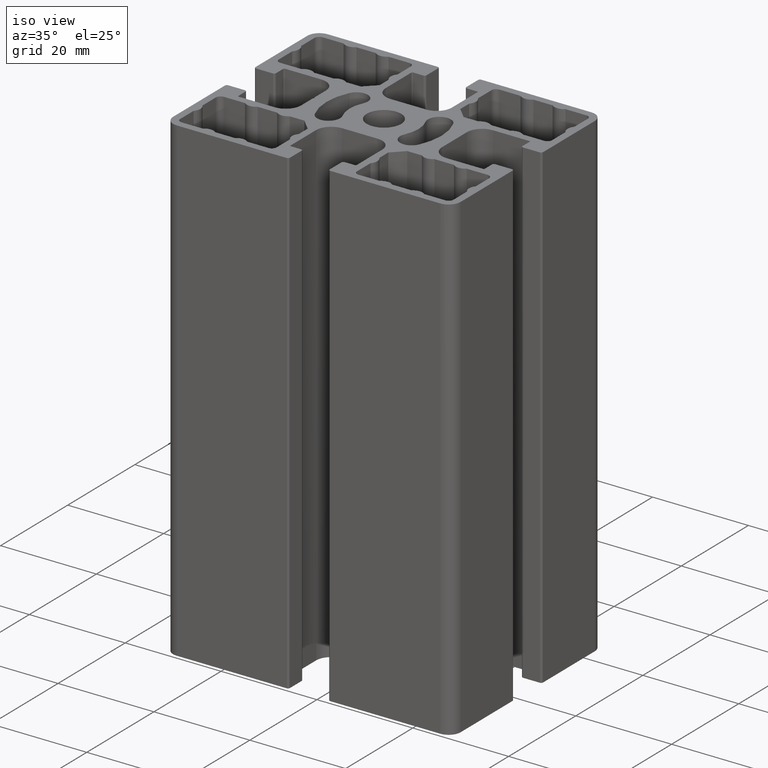
[diagram: clean part render]
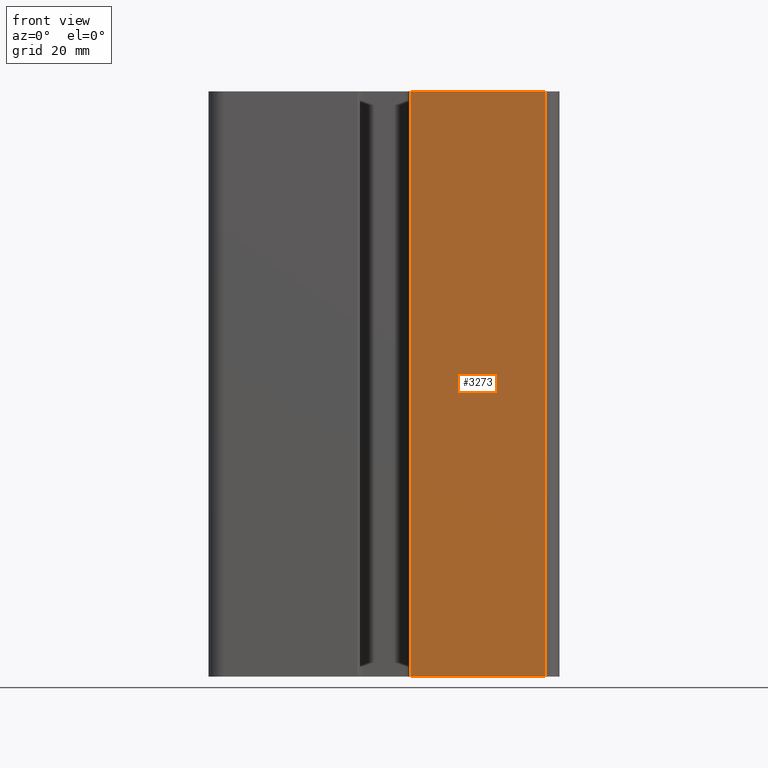
[diagram: tour spotlight — one face highlighted and labeled with its STEP entity id]
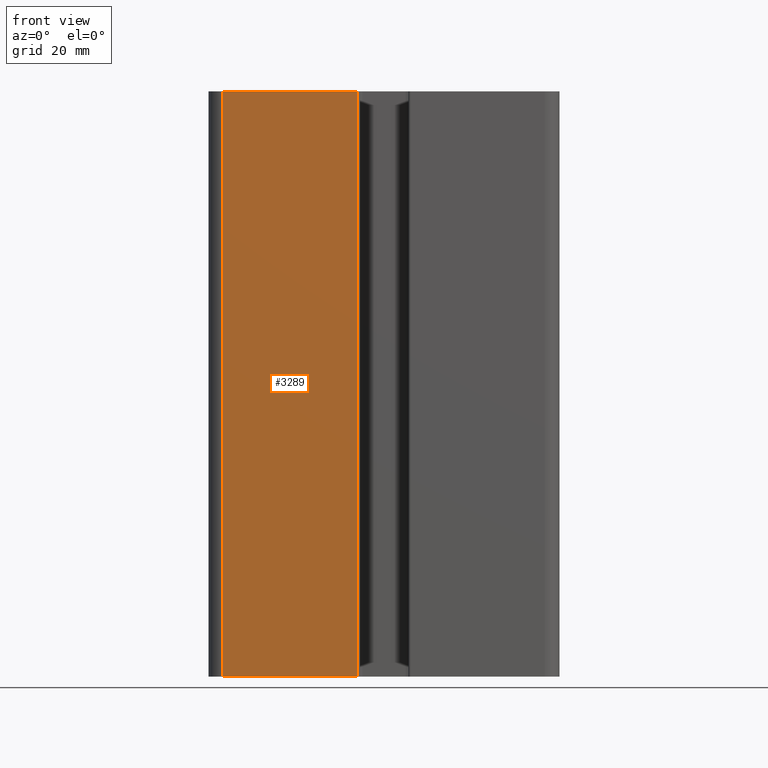
[diagram: tour spotlight — one face highlighted and labeled with its STEP entity id]
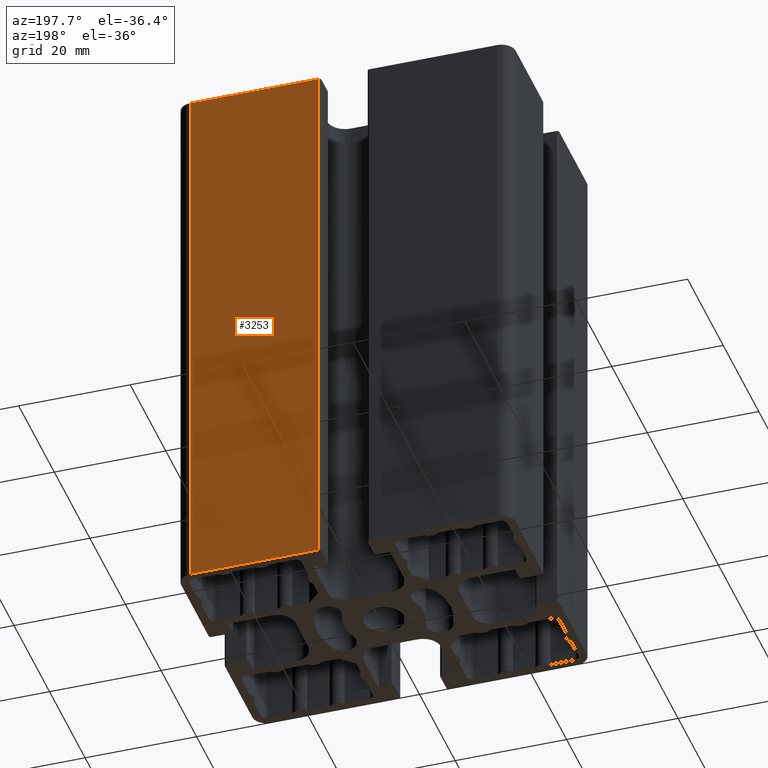
[diagram: tour spotlight — one face highlighted and labeled with its STEP entity id]
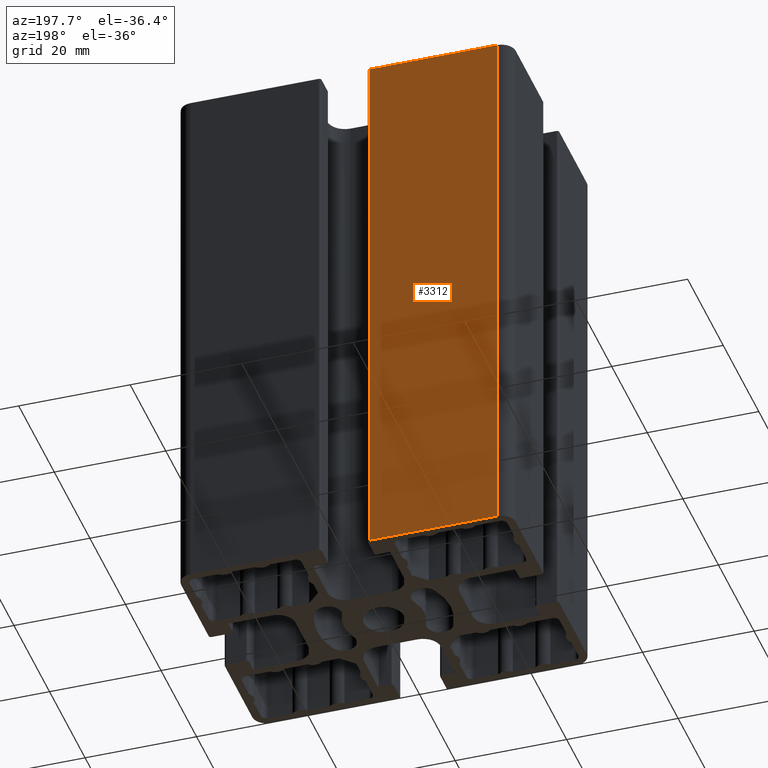
[diagram: tour spotlight — one face highlighted and labeled with its STEP entity id]
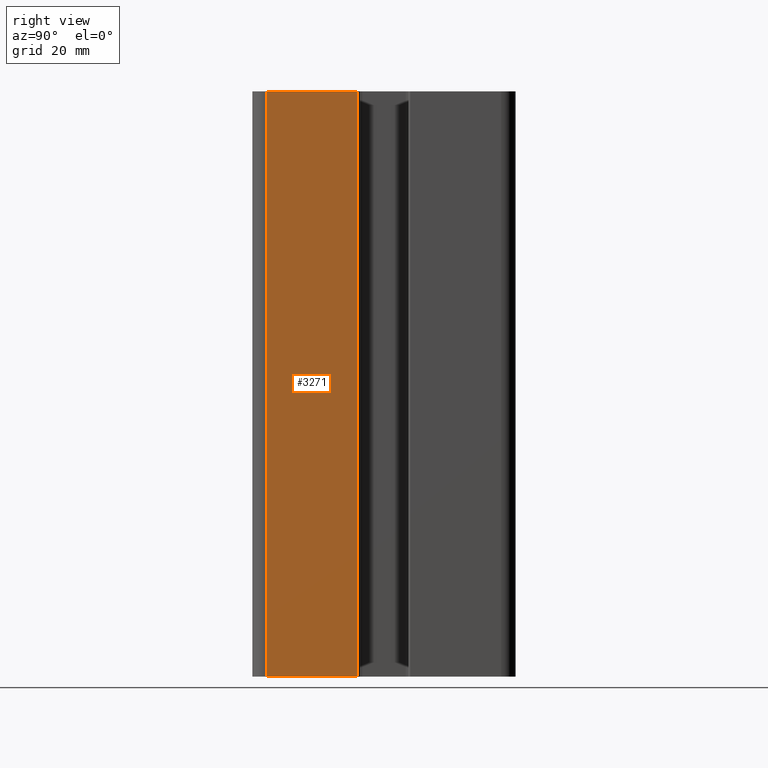
[diagram: tour spotlight — one face highlighted and labeled with its STEP entity id]
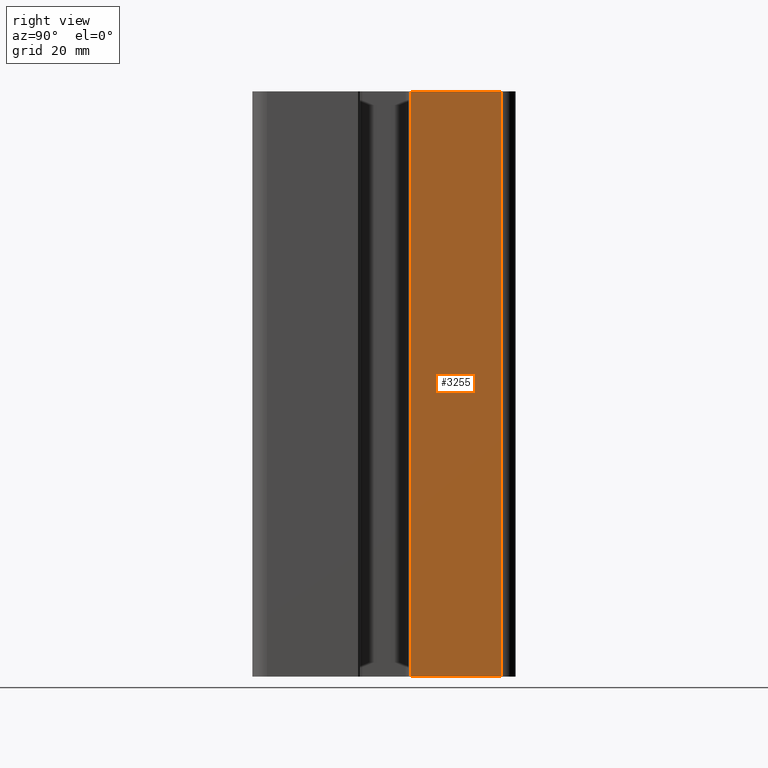
[diagram: tour spotlight — one face highlighted and labeled with its STEP entity id]
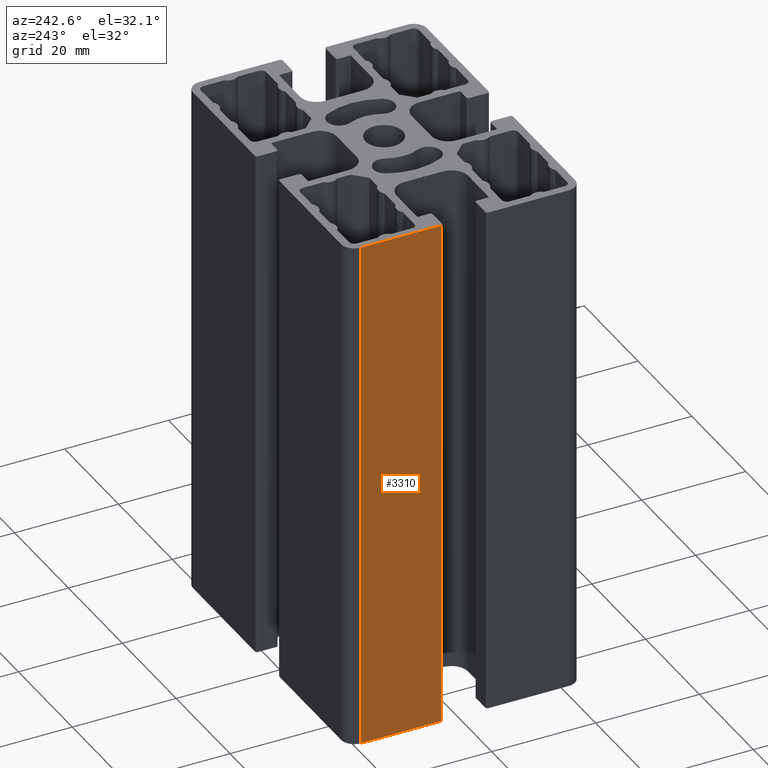
[diagram: tour spotlight — one face highlighted and labeled with its STEP entity id]
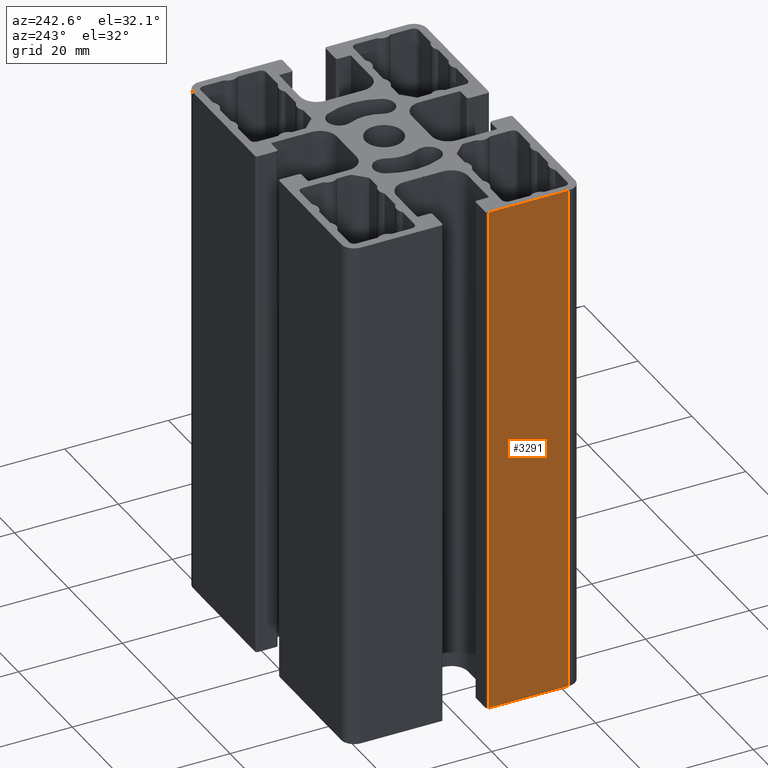
[diagram: tour spotlight — one face highlighted and labeled with its STEP entity id]
A machine part: a face-by-face anatomy tour. The part has 166 B-rep faces; the first image is the clean iso view, then the 8 largest visible faces are spotlighted one at a time (largest first), each with its STEP entity span.

Face 1 — front view, entity #3273. In plain terms, the highlighted planar face has unit normal (0, -1, 0).
Definition (entity closure, byte-faithful):
#84=PLANE('',#3551);
#224=FACE_OUTER_BOUND('',#391,.T.);
#391=EDGE_LOOP('',(#2535,#2536,#2537,#2538));
#678=LINE('',#5303,#1007);
#679=LINE('',#5306,#1008);
#680=LINE('',#5308,#1009);
#681=LINE('',#5309,#1010);
#1007=VECTOR('',#4316,100.);
#1008=VECTOR('',#4319,22.9499999765909);
#1009=VECTOR('',#4320,22.9499999765909);
#1010=VECTOR('',#4321,100.);
#1500=VERTEX_POINT('',#5299);
#1501=VERTEX_POINT('',#5301);
#1502=VERTEX_POINT('',#5305);
#1503=VERTEX_POINT('',#5307);
#1936=EDGE_CURVE('',#1500,#1501,#678,.T.);
#1937=EDGE_CURVE('',#1502,#1500,#679,.T.);
#1938=EDGE_CURVE('',#1503,#1501,#680,.T.);
#1939=EDGE_CURVE('',#1502,#1503,#681,.T.);
#2535=ORIENTED_EDGE('',*,*,#1937,.T.);
#2536=ORIENTED_EDGE('',*,*,#1936,.T.);
#2537=ORIENTED_EDGE('',*,*,#1938,.F.);
#2538=ORIENTED_EDGE('',*,*,#1939,.F.);
#3273=ADVANCED_FACE('',(#224),#84,.T.);
#3551=AXIS2_PLACEMENT_3D('',#5304,#4317,#4318);
#4316=DIRECTION('',(0.,0.,1.));
#4317=DIRECTION('center_axis',(0.,-1.,0.));
#4318=DIRECTION('ref_axis',(1.,0.,0.));
#4319=DIRECTION('',(1.,0.,0.));
#4320=DIRECTION('',(1.,0.,0.));
#4321=DIRECTION('',(0.,0.,1.));
#5299=CARTESIAN_POINT('',(27.49999997195,-22.49999997705,0.));
#5301=CARTESIAN_POINT('',(27.49999997195,-22.49999997705,100.));
#5303=CARTESIAN_POINT('',(27.49999997195,-22.49999997705,0.));
#5304=CARTESIAN_POINT('Origin',(4.54999999535914,-22.49999997705,0.));
#5305=CARTESIAN_POINT('',(4.54999999535914,-22.49999997705,0.));
#5306=CARTESIAN_POINT('',(4.54999999535914,-22.49999997705,0.));
#5307=CARTESIAN_POINT('',(4.54999999535914,-22.49999997705,100.));
#5308=CARTESIAN_POINT('',(4.54999999535914,-22.49999997705,100.));
#5309=CARTESIAN_POINT('',(4.54999999535914,-22.49999997705,0.));

Face 2 — front view, entity #3289. In plain terms, the highlighted planar face has unit normal (0, -1, 0).
Definition (entity closure, byte-faithful):
#92=PLANE('',#3583);
#240=FACE_OUTER_BOUND('',#407,.T.);
#407=EDGE_LOOP('',(#2599,#2600,#2601,#2602));
#710=LINE('',#5399,#1039);
#711=LINE('',#5402,#1040);
#712=LINE('',#5404,#1041);
#713=LINE('',#5405,#1042);
#1039=VECTOR('',#4412,100.);
#1040=VECTOR('',#4415,22.9499999765909);
#1041=VECTOR('',#4416,22.9499999765909);
#1042=VECTOR('',#4417,100.);
#1532=VERTEX_POINT('',#5395);
#1533=VERTEX_POINT('',#5397);
#1534=VERTEX_POINT('',#5401);
#1535=VERTEX_POINT('',#5403);
#1984=EDGE_CURVE('',#1532,#1533,#710,.T.);
#1985=EDGE_CURVE('',#1534,#1532,#711,.T.);
#1986=EDGE_CURVE('',#1535,#1533,#712,.T.);
#1987=EDGE_CURVE('',#1534,#1535,#713,.T.);
#2599=ORIENTED_EDGE('',*,*,#1985,.T.);
#2600=ORIENTED_EDGE('',*,*,#1984,.T.);
#2601=ORIENTED_EDGE('',*,*,#1986,.F.);
#2602=ORIENTED_EDGE('',*,*,#1987,.F.);
#3289=ADVANCED_FACE('',(#240),#92,.T.);
#3583=AXIS2_PLACEMENT_3D('',#5400,#4413,#4414);
#4412=DIRECTION('',(0.,0.,1.));
#4413=DIRECTION('center_axis',(0.,-1.,0.));
#4414=DIRECTION('ref_axis',(1.,0.,0.));
#4415=DIRECTION('',(1.,0.,0.));
#4416=DIRECTION('',(1.,0.,0.));
#4417=DIRECTION('',(0.,0.,1.));
#5395=CARTESIAN_POINT('',(-4.54999999535914,-22.49999997705,0.));
#5397=CARTESIAN_POINT('',(-4.54999999535914,-22.49999997705,100.));
#5399=CARTESIAN_POINT('',(-4.54999999535914,-22.49999997705,0.));
#5400=CARTESIAN_POINT('Origin',(-27.49999997195,-22.49999997705,0.));
#5401=CARTESIAN_POINT('',(-27.49999997195,-22.49999997705,0.));
#5402=CARTESIAN_POINT('',(-27.49999997195,-22.49999997705,0.));
#5403=CARTESIAN_POINT('',(-27.49999997195,-22.49999997705,100.));
#5404=CARTESIAN_POINT('',(-27.49999997195,-22.49999997705,100.));
#5405=CARTESIAN_POINT('',(-27.49999997195,-22.49999997705,0.));

Face 3 — auxiliary view, entity #3253. In plain terms, the highlighted planar face has unit normal (0, 1, 0).
Definition (entity closure, byte-faithful):
#74=PLANE('',#3511);
#204=FACE_OUTER_BOUND('',#371,.T.);
#371=EDGE_LOOP('',(#2455,#2456,#2457,#2458));
#638=LINE('',#5184,#967);
#639=LINE('',#5186,#968);
#640=LINE('',#5188,#969);
#641=LINE('',#5189,#970);
#967=VECTOR('',#4198,22.9499999765909);
#968=VECTOR('',#4199,100.);
#969=VECTOR('',#4200,22.9499999765909);
#970=VECTOR('',#4201,100.);
#1460=VERTEX_POINT('',#5182);
#1461=VERTEX_POINT('',#5183);
#1462=VERTEX_POINT('',#5185);
#1463=VERTEX_POINT('',#5187);
#1876=EDGE_CURVE('',#1460,#1461,#638,.T.);
#1877=EDGE_CURVE('',#1461,#1462,#639,.T.);
#1878=EDGE_CURVE('',#1463,#1462,#640,.T.);
#1879=EDGE_CURVE('',#1460,#1463,#641,.T.);
#2455=ORIENTED_EDGE('',*,*,#1876,.T.);
#2456=ORIENTED_EDGE('',*,*,#1877,.T.);
#2457=ORIENTED_EDGE('',*,*,#1878,.F.);
#2458=ORIENTED_EDGE('',*,*,#1879,.F.);
#3253=ADVANCED_FACE('',(#204),#74,.T.);
#3511=AXIS2_PLACEMENT_3D('',#5181,#4196,#4197);
#4196=DIRECTION('center_axis',(0.,1.,0.));
#4197=DIRECTION('ref_axis',(-1.,0.,0.));
#4198=DIRECTION('',(-1.,0.,0.));
#4199=DIRECTION('',(0.,0.,1.));
#4200=DIRECTION('',(-1.,0.,0.));
#4201=DIRECTION('',(0.,0.,1.));
#5181=CARTESIAN_POINT('Origin',(27.49999997195,22.49999997705,0.));
#5182=CARTESIAN_POINT('',(27.49999997195,22.49999997705,0.));
#5183=CARTESIAN_POINT('',(4.54999999535914,22.49999997705,0.));
#5184=CARTESIAN_POINT('',(27.49999997195,22.49999997705,0.));
#5185=CARTESIAN_POINT('',(4.54999999535914,22.49999997705,100.));
#5186=CARTESIAN_POINT('',(4.54999999535914,22.49999997705,0.));
#5187=CARTESIAN_POINT('',(27.49999997195,22.49999997705,100.));
#5188=CARTESIAN_POINT('',(27.49999997195,22.49999997705,100.));
#5189=CARTESIAN_POINT('',(27.49999997195,22.49999997705,0.));

Face 4 — auxiliary view, entity #3312. In plain terms, the highlighted planar face has unit normal (0, 1, 0).
Definition (entity closure, byte-faithful):
#105=PLANE('',#3626);
#263=FACE_OUTER_BOUND('',#430,.T.);
#430=EDGE_LOOP('',(#2691,#2692,#2693,#2694));
#759=LINE('',#5537,#1088);
#760=LINE('',#5540,#1089);
#761=LINE('',#5542,#1090);
#762=LINE('',#5543,#1091);
#1088=VECTOR('',#4547,100.);
#1089=VECTOR('',#4550,22.9499999765912);
#1090=VECTOR('',#4551,22.9499999765912);
#1091=VECTOR('',#4552,100.);
#1578=VERTEX_POINT('',#5533);
#1579=VERTEX_POINT('',#5535);
#1580=VERTEX_POINT('',#5539);
#1581=VERTEX_POINT('',#5541);
#2053=EDGE_CURVE('',#1578,#1579,#759,.T.);
#2054=EDGE_CURVE('',#1580,#1578,#760,.T.);
#2055=EDGE_CURVE('',#1581,#1579,#761,.T.);
#2056=EDGE_CURVE('',#1580,#1581,#762,.T.);
#2691=ORIENTED_EDGE('',*,*,#2054,.T.);
#2692=ORIENTED_EDGE('',*,*,#2053,.T.);
#2693=ORIENTED_EDGE('',*,*,#2055,.F.);
#2694=ORIENTED_EDGE('',*,*,#2056,.F.);
#3312=ADVANCED_FACE('',(#263),#105,.T.);
#3626=AXIS2_PLACEMENT_3D('',#5538,#4548,#4549);
#4547=DIRECTION('',(0.,0.,1.));
#4548=DIRECTION('center_axis',(0.,1.,0.));
#4549=DIRECTION('ref_axis',(-1.,0.,0.));
#4550=DIRECTION('',(-1.,0.,0.));
#4551=DIRECTION('',(-1.,0.,0.));
#4552=DIRECTION('',(0.,0.,1.));
#5533=CARTESIAN_POINT('',(-27.49999997195,22.49999997705,0.));
#5535=CARTESIAN_POINT('',(-27.49999997195,22.49999997705,100.));
#5537=CARTESIAN_POINT('',(-27.49999997195,22.49999997705,0.));
#5538=CARTESIAN_POINT('Origin',(-4.54999999535886,22.49999997705,0.));
#5539=CARTESIAN_POINT('',(-4.54999999535886,22.49999997705,0.));
#5540=CARTESIAN_POINT('',(-4.54999999535886,22.49999997705,0.));
#5541=CARTESIAN_POINT('',(-4.54999999535886,22.49999997705,100.));
#5542=CARTESIAN_POINT('',(-4.54999999535886,22.49999997705,100.));
#5543=CARTESIAN_POINT('',(-4.54999999535886,22.49999997705,0.));

Face 5 — right view, entity #3271. In plain terms, the highlighted planar face has unit normal (1, 0, 0).
Definition (entity closure, byte-faithful):
#83=PLANE('',#3547);
#222=FACE_OUTER_BOUND('',#389,.T.);
#389=EDGE_LOOP('',(#2527,#2528,#2529,#2530));
#674=LINE('',#5291,#1003);
#675=LINE('',#5294,#1004);
#676=LINE('',#5296,#1005);
#677=LINE('',#5297,#1006);
#1003=VECTOR('',#4304,100.);
#1004=VECTOR('',#4307,15.4499999842409);
#1005=VECTOR('',#4308,15.4499999842409);
#1006=VECTOR('',#4309,100.);
#1496=VERTEX_POINT('',#5287);
#1497=VERTEX_POINT('',#5289);
#1498=VERTEX_POINT('',#5293);
#1499=VERTEX_POINT('',#5295);
#1930=EDGE_CURVE('',#1496,#1497,#674,.T.);
#1931=EDGE_CURVE('',#1498,#1496,#675,.T.);
#1932=EDGE_CURVE('',#1499,#1497,#676,.T.);
#1933=EDGE_CURVE('',#1498,#1499,#677,.T.);
#2527=ORIENTED_EDGE('',*,*,#1931,.T.);
#2528=ORIENTED_EDGE('',*,*,#1930,.T.);
#2529=ORIENTED_EDGE('',*,*,#1932,.F.);
#2530=ORIENTED_EDGE('',*,*,#1933,.F.);
#3271=ADVANCED_FACE('',(#222),#83,.T.);
#3547=AXIS2_PLACEMENT_3D('',#5292,#4305,#4306);
#4304=DIRECTION('',(0.,0.,1.));
#4305=DIRECTION('center_axis',(1.,0.,0.));
#4306=DIRECTION('ref_axis',(0.,1.,0.));
#4307=DIRECTION('',(0.,1.,0.));
#4308=DIRECTION('',(0.,1.,0.));
#4309=DIRECTION('',(0.,0.,1.));
#5287=CARTESIAN_POINT('',(29.9999999694001,-4.54999999535858,0.));
#5289=CARTESIAN_POINT('',(29.9999999694001,-4.54999999535858,100.));
#5291=CARTESIAN_POINT('',(29.9999999694001,-4.54999999535858,0.));
#5292=CARTESIAN_POINT('Origin',(29.9999999694001,-19.9999999795995,0.));
#5293=CARTESIAN_POINT('',(29.9999999694001,-19.9999999795995,0.));
#5294=CARTESIAN_POINT('',(29.9999999694001,-19.9999999795995,0.));
#5295=CARTESIAN_POINT('',(29.9999999694001,-19.9999999795995,100.));
#5296=CARTESIAN_POINT('',(29.9999999694001,-19.9999999795995,100.));
#5297=CARTESIAN_POINT('',(29.9999999694001,-19.9999999795995,0.));

Face 6 — right view, entity #3255. In plain terms, the highlighted planar face has unit normal (1, 0, 0).
Definition (entity closure, byte-faithful):
#75=PLANE('',#3515);
#206=FACE_OUTER_BOUND('',#373,.T.);
#373=EDGE_LOOP('',(#2463,#2464,#2465,#2466));
#642=LINE('',#5195,#971);
#643=LINE('',#5198,#972);
#644=LINE('',#5200,#973);
#645=LINE('',#5201,#974);
#971=VECTOR('',#4208,100.);
#972=VECTOR('',#4211,15.4499999842409);
#973=VECTOR('',#4212,15.4499999842409);
#974=VECTOR('',#4213,100.);
#1464=VERTEX_POINT('',#5191);
#1465=VERTEX_POINT('',#5193);
#1466=VERTEX_POINT('',#5197);
#1467=VERTEX_POINT('',#5199);
#1882=EDGE_CURVE('',#1464,#1465,#642,.T.);
#1883=EDGE_CURVE('',#1466,#1464,#643,.T.);
#1884=EDGE_CURVE('',#1467,#1465,#644,.T.);
#1885=EDGE_CURVE('',#1466,#1467,#645,.T.);
#2463=ORIENTED_EDGE('',*,*,#1883,.T.);
#2464=ORIENTED_EDGE('',*,*,#1882,.T.);
#2465=ORIENTED_EDGE('',*,*,#1884,.F.);
#2466=ORIENTED_EDGE('',*,*,#1885,.F.);
#3255=ADVANCED_FACE('',(#206),#75,.T.);
#3515=AXIS2_PLACEMENT_3D('',#5196,#4209,#4210);
#4208=DIRECTION('',(0.,0.,1.));
#4209=DIRECTION('center_axis',(1.,0.,0.));
#4210=DIRECTION('ref_axis',(0.,1.,0.));
#4211=DIRECTION('',(0.,1.,0.));
#4212=DIRECTION('',(0.,1.,0.));
#4213=DIRECTION('',(0.,0.,1.));
#5191=CARTESIAN_POINT('',(29.9999999694001,19.9999999796,0.));
#5193=CARTESIAN_POINT('',(29.9999999694001,19.9999999796,100.));
#5195=CARTESIAN_POINT('',(29.9999999694001,19.9999999796,0.));
#5196=CARTESIAN_POINT('Origin',(29.9999999694001,4.54999999535914,0.));
#5197=CARTESIAN_POINT('',(29.9999999694001,4.54999999535914,0.));
#5198=CARTESIAN_POINT('',(29.9999999694001,4.54999999535914,0.));
#5199=CARTESIAN_POINT('',(29.9999999694001,4.54999999535914,100.));
#5200=CARTESIAN_POINT('',(29.9999999694001,4.54999999535914,100.));
#5201=CARTESIAN_POINT('',(29.9999999694001,4.54999999535914,0.));

Face 7 — auxiliary view, entity #3310. In plain terms, the highlighted planar face has unit normal (-1, 0, 0).
Definition (entity closure, byte-faithful):
#104=PLANE('',#3622);
#261=FACE_OUTER_BOUND('',#428,.T.);
#428=EDGE_LOOP('',(#2683,#2684,#2685,#2686));
#755=LINE('',#5525,#1084);
#756=LINE('',#5528,#1085);
#757=LINE('',#5530,#1086);
#758=LINE('',#5531,#1087);
#1084=VECTOR('',#4535,100.);
#1085=VECTOR('',#4538,15.4499999842409);
#1086=VECTOR('',#4539,15.4499999842409);
#1087=VECTOR('',#4540,100.);
#1574=VERTEX_POINT('',#5521);
#1575=VERTEX_POINT('',#5523);
#1576=VERTEX_POINT('',#5527);
#1577=VERTEX_POINT('',#5529);
#2047=EDGE_CURVE('',#1574,#1575,#755,.T.);
#2048=EDGE_CURVE('',#1576,#1574,#756,.T.);
#2049=EDGE_CURVE('',#1577,#1575,#757,.T.);
#2050=EDGE_CURVE('',#1576,#1577,#758,.T.);
#2683=ORIENTED_EDGE('',*,*,#2048,.T.);
#2684=ORIENTED_EDGE('',*,*,#2047,.T.);
#2685=ORIENTED_EDGE('',*,*,#2049,.F.);
#2686=ORIENTED_EDGE('',*,*,#2050,.F.);
#3310=ADVANCED_FACE('',(#261),#104,.T.);
#3622=AXIS2_PLACEMENT_3D('',#5526,#4536,#4537);
#4535=DIRECTION('',(0.,0.,1.));
#4536=DIRECTION('center_axis',(-1.,0.,0.));
#4537=DIRECTION('ref_axis',(0.,-1.,0.));
#4538=DIRECTION('',(0.,-1.,0.));
#4539=DIRECTION('',(0.,-1.,0.));
#4540=DIRECTION('',(0.,0.,1.));
#5521=CARTESIAN_POINT('',(-29.9999999694001,4.54999999535914,0.));
#5523=CARTESIAN_POINT('',(-29.9999999694001,4.54999999535914,100.));
#5525=CARTESIAN_POINT('',(-29.9999999694001,4.54999999535914,0.));
#5526=CARTESIAN_POINT('Origin',(-29.9999999694001,19.9999999796,0.));
#5527=CARTESIAN_POINT('',(-29.9999999694001,19.9999999796,0.));
#5528=CARTESIAN_POINT('',(-29.9999999694001,19.9999999796,0.));
#5529=CARTESIAN_POINT('',(-29.9999999694001,19.9999999796,100.));
#5530=CARTESIAN_POINT('',(-29.9999999694001,19.9999999796,100.));
#5531=CARTESIAN_POINT('',(-29.9999999694001,19.9999999796,0.));

Face 8 — auxiliary view, entity #3291. In plain terms, the highlighted planar face has unit normal (-1, 0, 0).
Definition (entity closure, byte-faithful):
#93=PLANE('',#3587);
#242=FACE_OUTER_BOUND('',#409,.T.);
#409=EDGE_LOOP('',(#2607,#2608,#2609,#2610));
#714=LINE('',#5411,#1043);
#715=LINE('',#5414,#1044);
#716=LINE('',#5416,#1045);
#717=LINE('',#5417,#1046);
#1043=VECTOR('',#4424,100.);
#1044=VECTOR('',#4427,15.4499999842403);
#1045=VECTOR('',#4428,15.4499999842403);
#1046=VECTOR('',#4429,100.);
#1536=VERTEX_POINT('',#5407);
#1537=VERTEX_POINT('',#5409);
#1538=VERTEX_POINT('',#5413);
#1539=VERTEX_POINT('',#5415);
#1990=EDGE_CURVE('',#1536,#1537,#714,.T.);
#1991=EDGE_CURVE('',#1538,#1536,#715,.T.);
#1992=EDGE_CURVE('',#1539,#1537,#716,.T.);
#1993=EDGE_CURVE('',#1538,#1539,#717,.T.);
#2607=ORIENTED_EDGE('',*,*,#1991,.T.);
#2608=ORIENTED_EDGE('',*,*,#1990,.T.);
#2609=ORIENTED_EDGE('',*,*,#1992,.F.);
#2610=ORIENTED_EDGE('',*,*,#1993,.F.);
#3291=ADVANCED_FACE('',(#242),#93,.T.);
#3587=AXIS2_PLACEMENT_3D('',#5412,#4425,#4426);
#4424=DIRECTION('',(0.,0.,1.));
#4425=DIRECTION('center_axis',(-1.,1.83959284526831E-14,0.));
#4426=DIRECTION('ref_axis',(-1.84741111297626E-14,-1.,0.));
#4427=DIRECTION('',(-1.83959284526831E-14,-1.,0.));
#4428=DIRECTION('',(-1.83959284526831E-14,-1.,0.));
#4429=DIRECTION('',(0.,0.,1.));
#5407=CARTESIAN_POINT('',(-29.9999999694003,-19.9999999795995,0.));
#5409=CARTESIAN_POINT('',(-29.9999999694003,-19.9999999795995,100.));
#5411=CARTESIAN_POINT('',(-29.9999999694003,-19.9999999795995,0.));
#5412=CARTESIAN_POINT('Origin',(-29.9999999694001,-4.54999999535914,0.));
#5413=CARTESIAN_POINT('',(-29.9999999694001,-4.54999999535914,0.));
#5414=CARTESIAN_POINT('',(-29.9999999694001,-4.54999999535914,0.));
#5415=CARTESIAN_POINT('',(-29.9999999694001,-4.54999999535914,100.));
#5416=CARTESIAN_POINT('',(-29.9999999694001,-4.54999999535914,100.));
#5417=CARTESIAN_POINT('',(-29.9999999694001,-4.54999999535914,0.));